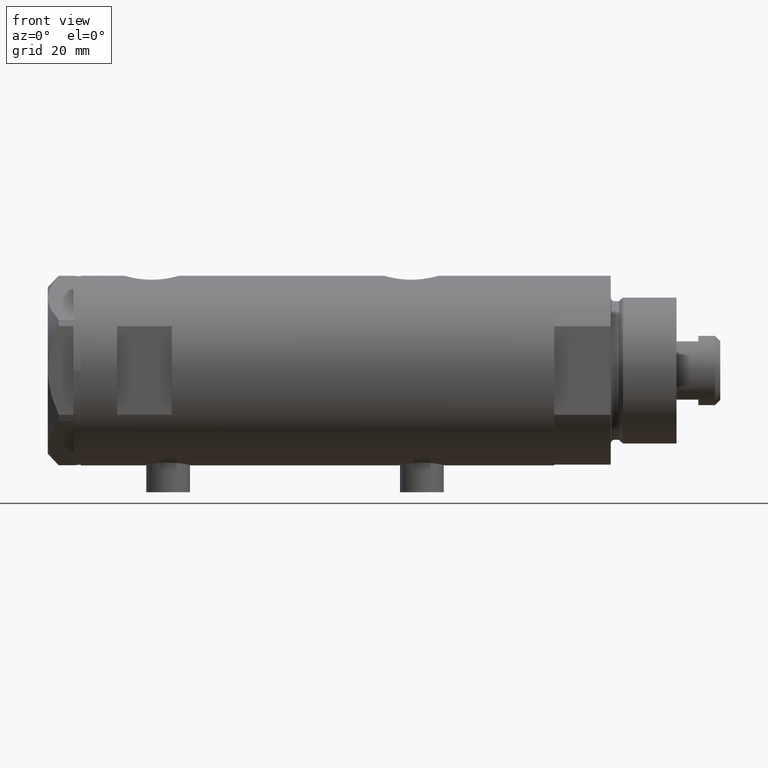
[diagram: clean part render]
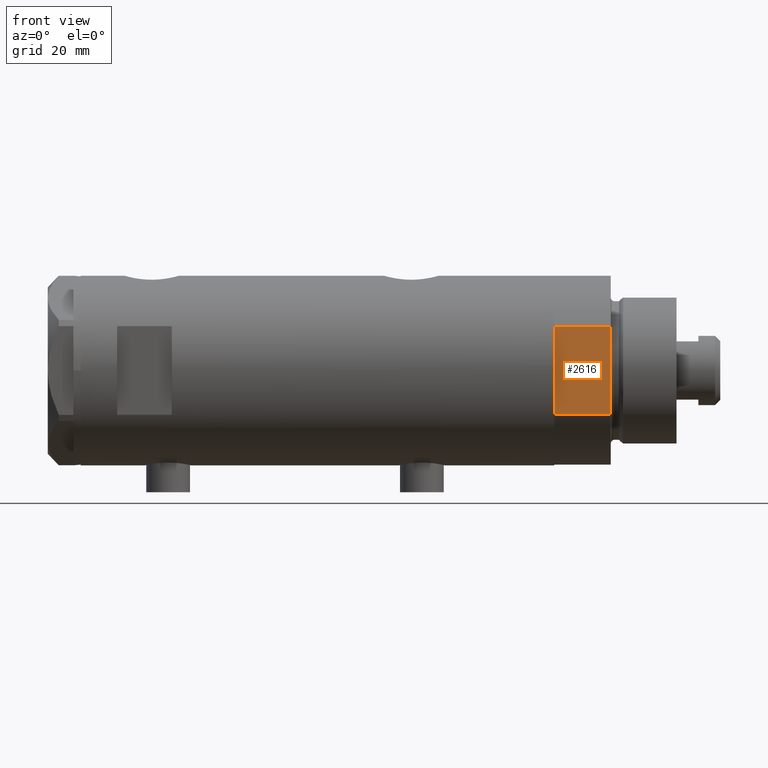
[diagram: same view with one face highlighted and labeled with its STEP entity id]
A machine part, front view. The second image highlights one B-rep face of the part: STEP entity #2616.
In plain terms, the highlighted planar face has unit normal (-0, 1, 0).
Its self-contained STEP definition (entity closure, byte-faithful):
#49 = DIRECTION ( 'NONE',  ( 0.000000000000000000, -0.000000000000000000, 1.000000000000000000 ) ) ;
#85 = VERTEX_POINT ( 'NONE', #2347 ) ;
#138 = LINE ( 'NONE', #1623, #3081 ) ;
#148 = EDGE_CURVE ( 'NONE', #1057, #4669, #138, .T. ) ;
#162 = DIRECTION ( 'NONE',  ( -0.000000000000000000, -0.000000000000000000, 1.000000000000000000 ) ) ;
#265 = VECTOR ( 'NONE', #622, 1000.000000000000000 ) ;
#317 = EDGE_CURVE ( 'NONE', #1057, #85, #2476, .T. ) ;
#327 = CARTESIAN_POINT ( 'NONE',  ( -12.12435565298215145, -22.99999999999999645, 15.50000000000000000 ) ) ;
#369 = ORIENTED_EDGE ( 'NONE', *, *, #148, .T. ) ;
#580 = LINE ( 'NONE', #327, #2919 ) ;
#600 = LINE ( 'NONE', #3208, #265 ) ;
#613 = DIRECTION ( 'NONE',  ( -1.000000000000000000, -0.000000000000000000, -0.000000000000000000 ) ) ;
#622 = DIRECTION ( 'NONE',  ( -0.000000000000000000, -0.000000000000000000, 1.000000000000000000 ) ) ;
#839 = CARTESIAN_POINT ( 'NONE',  ( -12.12435565298215323, -22.99999999999999645, 15.50000000000000000 ) ) ;
#1057 = VERTEX_POINT ( 'NONE', #1385 ) ;
#1204 = ORIENTED_EDGE ( 'NONE', *, *, #317, .F. ) ;
#1385 = CARTESIAN_POINT ( 'NONE',  ( 12.12435565298215323, -22.99999999999999645, 0.000000000000000000 ) ) ;
#1452 = DIRECTION ( 'NONE',  ( -1.000000000000000000, -0.000000000000000000, -0.000000000000000000 ) ) ;
#1459 = FACE_OUTER_BOUND ( 'NONE', #2988, .T. ) ;
#1613 = CARTESIAN_POINT ( 'NONE',  ( -12.12435565298215145, -22.99999999999999645, 0.000000000000000000 ) ) ;
#1623 = CARTESIAN_POINT ( 'NONE',  ( 12.12435565298215323, -22.99999999999999645, 0.000000000000000000 ) ) ;
#1870 = EDGE_CURVE ( 'NONE', #85, #3056, #600, .T. ) ;
#2131 = CARTESIAN_POINT ( 'NONE',  ( 12.12435565298215323, -22.99999999999999645, 15.50000000000000000 ) ) ;
#2337 = PLANE ( 'NONE',  #4389 ) ;
#2347 = CARTESIAN_POINT ( 'NONE',  ( -12.12435565298215501, -22.99999999999999645, 0.000000000000000000 ) ) ;
#2469 = VECTOR ( 'NONE', #613, 1000.000000000000000 ) ;
#2476 = LINE ( 'NONE', #3980, #2469 ) ;
#2569 = ORIENTED_EDGE ( 'NONE', *, *, #1870, .F. ) ;
#2616 = ADVANCED_FACE ( 'NONE', ( #1459 ), #2337, .F. ) ;
#2919 = VECTOR ( 'NONE', #1452, 1000.000000000000000 ) ;
#2988 = EDGE_LOOP ( 'NONE', ( #4711, #2569, #1204, #369 ) ) ;
#3056 = VERTEX_POINT ( 'NONE', #839 ) ;
#3081 = VECTOR ( 'NONE', #162, 1000.000000000000000 ) ;
#3208 = CARTESIAN_POINT ( 'NONE',  ( -12.12435565298215145, -22.99999999999999645, 0.000000000000000000 ) ) ;
#3430 = DIRECTION ( 'NONE',  ( -0.000000000000000000, 1.000000000000000000, 0.000000000000000000 ) ) ;
#3980 = CARTESIAN_POINT ( 'NONE',  ( -12.12435565298215145, -22.99999999999999645, 0.000000000000000000 ) ) ;
#4208 = EDGE_CURVE ( 'NONE', #4669, #3056, #580, .T. ) ;
#4389 = AXIS2_PLACEMENT_3D ( 'NONE', #1613, #3430, #49 ) ;
#4669 = VERTEX_POINT ( 'NONE', #2131 ) ;
#4711 = ORIENTED_EDGE ( 'NONE', *, *, #4208, .T. ) ;